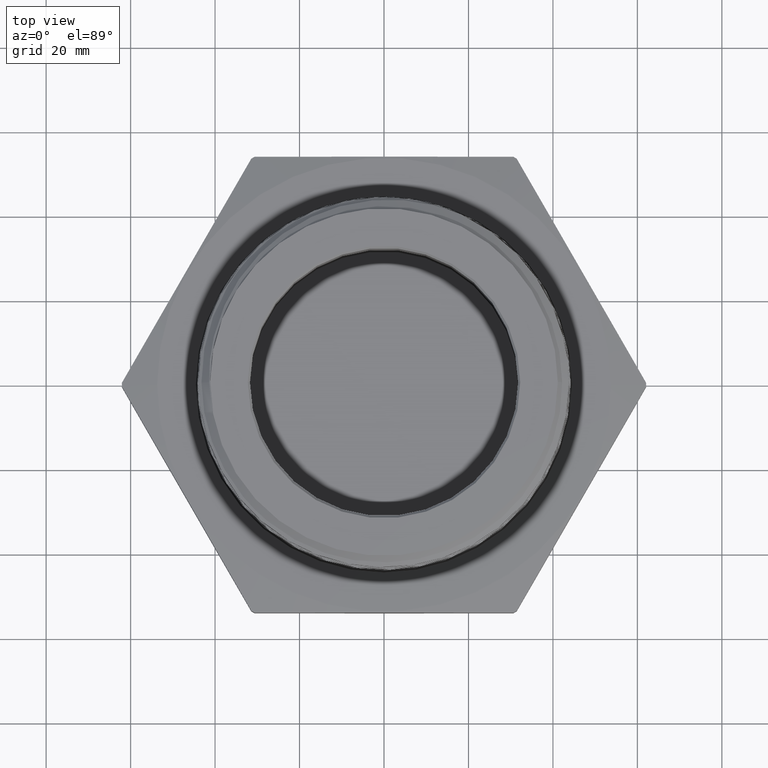
[diagram: clean part render]
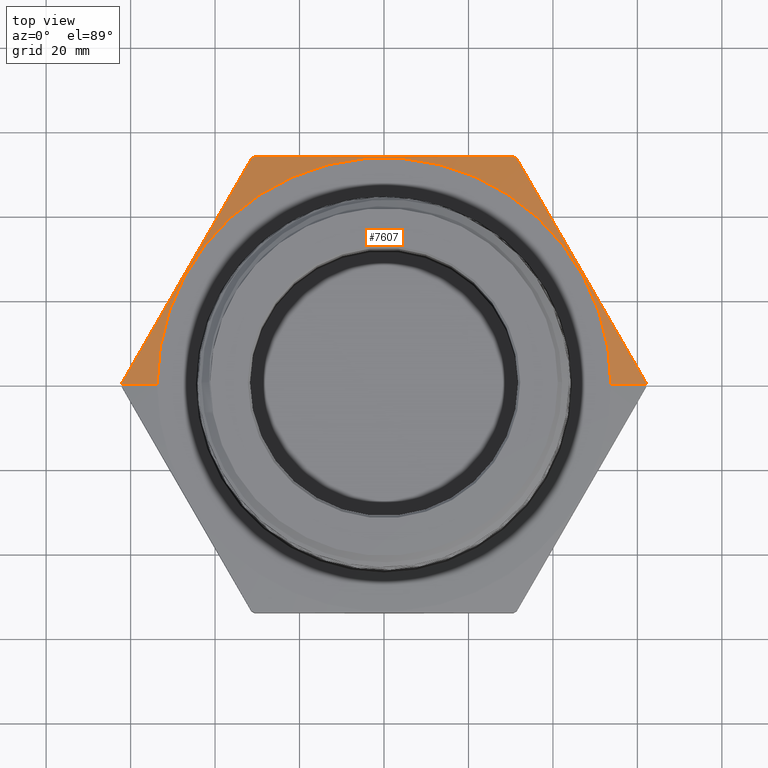
[diagram: same view with one face highlighted and labeled with its STEP entity id]
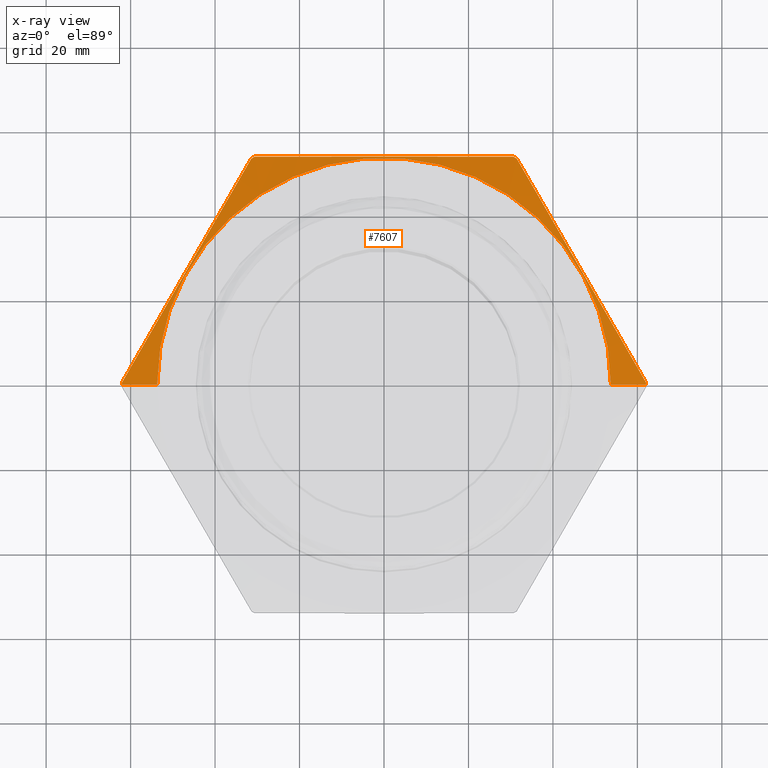
[diagram: x-ray of the same camera — body ghosted, the highlighted face saturated]
A machine part, top view. The second image highlights one B-rep face of the part: STEP entity #7607.
The next image is the same camera in x-ray: the body ghosted, the highlighted face saturated — about 0% of this face is hidden behind the body in this view.
In plain terms, the highlighted conical surface has half-angle 78 deg.
Its self-contained STEP definition (entity closure, byte-faithful):
#654 = B_SPLINE_CURVE_WITH_KNOTS ( 'NONE', 3,
 ( #4695, #4681, #4690, #4696, #4697, #4698, #4699, #4700, #4701 ),
 .UNSPECIFIED., .F., .F.,
 ( 4, 2, 1, 2, 4 ),
 ( 1.905392763494784500E-006, 0.01532756723704732800, 0.03065322908133116100, 0.04597889092561496800, 0.06130455276989878200 ),
 .UNSPECIFIED. ) ;
#655 = B_SPLINE_CURVE_WITH_KNOTS ( 'NONE', 3,
 ( #4772, #4755, #4766, #4773, #4774, #4775, #4776, #4777, #4778, #4779 ),
 .UNSPECIFIED., .F., .F.,
 ( 4, 2, 2, 2, 4 ),
 ( 0.05223950765027048100, 0.06762637841126337100, 0.08301324917225627600, 0.09840011993324916700, 0.1137869906942420600 ),
 .UNSPECIFIED. ) ;
#656 = B_SPLINE_CURVE_WITH_KNOTS ( 'NONE', 3,
 ( #4786, #4781, #4780, #4787, #4788, #4789, #4790, #4791, #4792 ),
 .UNSPECIFIED., .F., .F.,
 ( 4, 2, 1, 2, 4 ),
 ( 1.905392763277774600E-006, 0.01532756723704713000, 0.03065322908133098100, 0.04597889092561482900, 0.06130455276989868500 ),
 .UNSPECIFIED. ) ;
#1082 = DIRECTION ( 'NONE',  ( -1.000000000000000000, 0.0000000000000000000, 1.291653897713599600E-016 ) ) ;
#1083 = CARTESIAN_POINT ( 'NONE',  ( 6.274932739761918600E-017, 0.0000000000000000000, 0.4999999999999997200 ) ) ;
#1084 = DIRECTION ( 'NONE',  ( -1.254986547952384500E-016, -0.0000000000000000000, -1.000000000000000000 ) ) ;
#1156 = CARTESIAN_POINT ( 'NONE',  ( -1.236931469487450500, 2.107571849366902700, 0.4301244441314131000 ) ) ;
#1157 = CARTESIAN_POINT ( 'NONE',  ( -2.115000000000000200, 0.0000000000000000000, 0.5000000000000000000 ) ) ;
#1191 = CARTESIAN_POINT ( 'NONE',  ( -2.443738644055908300, 0.0000000000000000000, 0.4301244441314132100 ) ) ;
#1196 = CARTESIAN_POINT ( 'NONE',  ( -2.443676496596413300, 0.01742815063309760900, 0.4301244441314132100 ) ) ;
#1197 = CARTESIAN_POINT ( 'NONE',  ( 2.443738644055908300, 2.992716708395761100E-016, 0.4301244441314126500 ) ) ;
#1211 = CARTESIAN_POINT ( 'NONE',  ( 2.443676496596413300, 0.01742815063309597100, 0.4301244441314126500 ) ) ;
#1213 = CARTESIAN_POINT ( 'NONE',  ( 1.206745027108962600, 2.125000000000000000, 0.4301244441314128200 ) ) ;
#1215 = CARTESIAN_POINT ( 'NONE',  ( 2.115000000000000200, 2.590127980196652600E-016, 0.4999999999999994400 ) ) ;
#1216 = CARTESIAN_POINT ( 'NONE',  ( -1.206745027108962600, 2.125000000000000000, 0.4301244441314131000 ) ) ;
#1228 = CARTESIAN_POINT ( 'NONE',  ( 1.236931469487448500, 2.107571849366904400, 0.4301244441314128200 ) ) ;
#1362 = EDGE_CURVE ( 'NONE', #7767, #7757, #7397, .T. ) ;
#1367 = EDGE_CURVE ( 'NONE', #7756, #7767, #7404, .T. ) ;
#1369 = EDGE_CURVE ( 'NONE', #7753, #7780, #7413, .T. ) ;
#1370 = EDGE_CURVE ( 'NONE', #7757, #7753, #654, .T. ) ;
#1397 = EDGE_CURVE ( 'NONE', #7780, #7777, #655, .T. ) ;
#1398 = EDGE_CURVE ( 'NONE', #7777, #7792, #7448, .T. ) ;
#1399 = EDGE_CURVE ( 'NONE', #7792, #7775, #656, .T. ) ;
#1400 = EDGE_CURVE ( 'NONE', #7775, #7758, #7452, .T. ) ;
#1401 = EDGE_CURVE ( 'NONE', #7779, #7758, #7453, .T. ) ;
#1402 = EDGE_CURVE ( 'NONE', #7756, #7779, #7449, .T. ) ;
#1505 = AXIS2_PLACEMENT_3D ( 'NONE', #4673, #4674, #4675 ) ;
#1509 = AXIS2_PLACEMENT_3D ( 'NONE', #4692, #4693, #4694 ) ;
#1526 = AXIS2_PLACEMENT_3D ( 'NONE', #4783, #4784, #4785 ) ;
#1527 = AXIS2_PLACEMENT_3D ( 'NONE', #4794, #4795, #4796 ) ;
#1528 = AXIS2_PLACEMENT_3D ( 'NONE', #4799, #4800, #4801 ) ;
#1569 = AXIS2_PLACEMENT_3D ( 'NONE', #1083, #1084, #1082 ) ;
#4673 = CARTESIAN_POINT ( 'NONE',  ( 5.398003913304201600E-017, 0.0000000000000000000, 0.4301244441314129300 ) ) ;
#4674 = DIRECTION ( 'NONE',  ( -1.254986547952384500E-016, -0.0000000000000000000, -1.000000000000000000 ) ) ;
#4675 = DIRECTION ( 'NONE',  ( -1.000000000000000000, 0.0000000000000000000, 1.117896956906232600E-016 ) ) ;
#4681 = CARTESIAN_POINT ( 'NONE',  ( -2.343114411003999600, 0.1916067921942480000, 0.4512349939680404000 ) ) ;
#4682 = CARTESIAN_POINT ( 'NONE',  ( -2.115000000000000200, 0.0000000000000000000, 0.5000000000000000000 ) ) ;
#4686 = DIRECTION ( 'NONE',  ( -0.9781476007338071300, 0.0000000000000000000, -0.2079116908177526300 ) ) ;
#4690 = CARTESIAN_POINT ( 'NONE',  ( -2.242552325411586000, 0.3657854337553982400, 0.4683426434038141000 ) ) ;
#4692 = CARTESIAN_POINT ( 'NONE',  ( 5.398003913304201600E-017, 0.0000000000000000000, 0.4301244441314129300 ) ) ;
#4693 = DIRECTION ( 'NONE',  ( -1.254986547952384500E-016, -0.0000000000000000000, -1.000000000000000000 ) ) ;
#4694 = DIRECTION ( 'NONE',  ( -1.000000000000000000, 0.0000000000000000000, 1.117896956906232600E-016 ) ) ;
#4695 = CARTESIAN_POINT ( 'NONE',  ( -2.443676496596413300, 0.01742815063309760900, 0.4301244441314132100 ) ) ;
#4696 = CARTESIAN_POINT ( 'NONE',  ( -2.041428154226758700, 0.7141427168776989200, 0.4916964930184521400 ) ) ;
#4697 = CARTESIAN_POINT ( 'NONE',  ( -1.840303983041931000, 1.062500000000000200, 0.5040523757481477600 ) ) ;
#4698 = CARTESIAN_POINT ( 'NONE',  ( -1.639179811857104400, 1.410857283122300500, 0.4916964930184521400 ) ) ;
#4699 = CARTESIAN_POINT ( 'NONE',  ( -1.438055640672277500, 1.759214566244601500, 0.4683426434038141500 ) ) ;
#4700 = CARTESIAN_POINT ( 'NONE',  ( -1.337493555079864300, 1.933393207805751400, 0.4512349939680405700 ) ) ;
#4701 = CARTESIAN_POINT ( 'NONE',  ( -1.236931469487450500, 2.107571849366902700, 0.4301244441314131000 ) ) ;
#4755 = CARTESIAN_POINT ( 'NONE',  ( -1.005781015009231200, 2.125000000000000000, 0.4512181832270550900 ) ) ;
#4766 = CARTESIAN_POINT ( 'NONE',  ( -0.8040512479218525600, 2.125000000000000000, 0.4683819090570765000 ) ) ;
#4771 = DIRECTION ( 'NONE',  ( 0.9781476007338069100, 1.197885328332319900E-016, -0.2079116908177528500 ) ) ;
#4772 = CARTESIAN_POINT ( 'NONE',  ( -1.206745027108962600, 2.125000000000000000, 0.4301244441314131000 ) ) ;
#4773 = CARTESIAN_POINT ( 'NONE',  ( -0.4011965096077161300, 2.125000000000000000, 0.4917441063620853200 ) ) ;
#4774 = CARTESIAN_POINT ( 'NONE',  ( -0.1998930446505723100, 2.124999999999999100, 0.4978999444683490100 ) ) ;
#4775 = CARTESIAN_POINT ( 'NONE',  ( 0.2024366476496758900, 2.124999999999999600, 0.4978487625073062500 ) ) ;
#4776 = CARTESIAN_POINT ( 'NONE',  ( 0.4034629190911901400, 2.124999999999999600, 0.4916437089205580300 ) ) ;
#4777 = CARTESIAN_POINT ( 'NONE',  ( 0.8052698255614353400, 2.125000000000000000, 0.4682799360836170700 ) ) ;
#4778 = CARTESIAN_POINT ( 'NONE',  ( 1.006051997229160200, 2.124999999999999600, 0.4511897401830140000 ) ) ;
#4779 = CARTESIAN_POINT ( 'NONE',  ( 1.206745027108962600, 2.125000000000000000, 0.4301244441314128200 ) ) ;
#4780 = CARTESIAN_POINT ( 'NONE',  ( 1.438055640672276400, 1.759214566244603000, 0.4683426434038138200 ) ) ;
#4781 = CARTESIAN_POINT ( 'NONE',  ( 1.337493555079863200, 1.933393207805754100, 0.4512349939680398400 ) ) ;
#4782 = CARTESIAN_POINT ( 'NONE',  ( 2.115000000000000200, 2.590127980196652600E-016, 0.4999999999999994400 ) ) ;
#4783 = CARTESIAN_POINT ( 'NONE',  ( 5.398003913304201600E-017, 0.0000000000000000000, 0.4301244441314129300 ) ) ;
#4784 = DIRECTION ( 'NONE',  ( -1.254986547952384500E-016, -0.0000000000000000000, -1.000000000000000000 ) ) ;
#4785 = DIRECTION ( 'NONE',  ( -1.000000000000000000, 0.0000000000000000000, 1.117896956906232600E-016 ) ) ;
#4786 = CARTESIAN_POINT ( 'NONE',  ( 1.236931469487448500, 2.107571849366904400, 0.4301244441314128200 ) ) ;
#4787 = CARTESIAN_POINT ( 'NONE',  ( 1.639179811857103000, 1.410857283122301400, 0.4916964930184515900 ) ) ;
#4788 = CARTESIAN_POINT ( 'NONE',  ( 1.840303983041931400, 1.062500000000000200, 0.5040523757481474300 ) ) ;
#4789 = CARTESIAN_POINT ( 'NONE',  ( 2.041428154226758700, 0.7141427168776989200, 0.4916964930184516400 ) ) ;
#4790 = CARTESIAN_POINT ( 'NONE',  ( 2.242552325411586400, 0.3657854337553973500, 0.4683426434038136000 ) ) ;
#4791 = CARTESIAN_POINT ( 'NONE',  ( 2.343114411004000500, 0.1916067921942465600, 0.4512349939680399000 ) ) ;
#4792 = CARTESIAN_POINT ( 'NONE',  ( 2.443676496596413300, 0.01742815063309597100, 0.4301244441314126500 ) ) ;
#4794 = CARTESIAN_POINT ( 'NONE',  ( 5.398003913304201600E-017, 0.0000000000000000000, 0.4301244441314129300 ) ) ;
#4795 = DIRECTION ( 'NONE',  ( -1.254986547952384500E-016, -0.0000000000000000000, -1.000000000000000000 ) ) ;
#4796 = DIRECTION ( 'NONE',  ( -1.000000000000000000, 0.0000000000000000000, 1.117896956906232600E-016 ) ) ;
#4799 = CARTESIAN_POINT ( 'NONE',  ( 6.274932739761918600E-017, 0.0000000000000000000, 0.4999999999999997200 ) ) ;
#4800 = DIRECTION ( 'NONE',  ( -1.254986547952384500E-016, -0.0000000000000000000, -1.000000000000000000 ) ) ;
#4801 = DIRECTION ( 'NONE',  ( -1.000000000000000000, 0.0000000000000000000, 1.291653897713599600E-016 ) ) ;
#7397 = CIRCLE ( 'NONE', #1505, 2.443738644055908300 ) ;
#7404 = LINE ( 'NONE', #4682, #7412 ) ;
#7412 = VECTOR ( 'NONE', #4686, 39.37007874015748900 ) ;
#7413 = CIRCLE ( 'NONE', #1509, 2.443738644055908300 ) ;
#7448 = CIRCLE ( 'NONE', #1526, 2.443738644055908300 ) ;
#7449 = CIRCLE ( 'NONE', #1528, 2.115000000000000200 ) ;
#7452 = CIRCLE ( 'NONE', #1527, 2.443738644055908300 ) ;
#7453 = LINE ( 'NONE', #4782, #7454 ) ;
#7454 = VECTOR ( 'NONE', #4771, 39.37007874015748100 ) ;
#7535 = FACE_OUTER_BOUND ( 'NONE', #7914, .T. ) ;
#7542 = CONICAL_SURFACE ( 'NONE', #1569, 2.115000000000000200, 1.361356816555583800 ) ;
#7607 = ADVANCED_FACE ( 'NONE', ( #7535 ), #7542, .T. ) ;
#7753 = VERTEX_POINT ( 'NONE', #1156 ) ;
#7756 = VERTEX_POINT ( 'NONE', #1157 ) ;
#7757 = VERTEX_POINT ( 'NONE', #1196 ) ;
#7758 = VERTEX_POINT ( 'NONE', #1197 ) ;
#7767 = VERTEX_POINT ( 'NONE', #1191 ) ;
#7775 = VERTEX_POINT ( 'NONE', #1211 ) ;
#7777 = VERTEX_POINT ( 'NONE', #1213 ) ;
#7779 = VERTEX_POINT ( 'NONE', #1215 ) ;
#7780 = VERTEX_POINT ( 'NONE', #1216 ) ;
#7792 = VERTEX_POINT ( 'NONE', #1228 ) ;
#7800 = ORIENTED_EDGE ( 'NONE', *, *, #1362, .F. ) ;
#7801 = ORIENTED_EDGE ( 'NONE', *, *, #1367, .F. ) ;
#7825 = ORIENTED_EDGE ( 'NONE', *, *, #1402, .T. ) ;
#7826 = ORIENTED_EDGE ( 'NONE', *, *, #1401, .T. ) ;
#7827 = ORIENTED_EDGE ( 'NONE', *, *, #1400, .F. ) ;
#7828 = ORIENTED_EDGE ( 'NONE', *, *, #1399, .F. ) ;
#7829 = ORIENTED_EDGE ( 'NONE', *, *, #1398, .F. ) ;
#7830 = ORIENTED_EDGE ( 'NONE', *, *, #1397, .F. ) ;
#7831 = ORIENTED_EDGE ( 'NONE', *, *, #1369, .F. ) ;
#7832 = ORIENTED_EDGE ( 'NONE', *, *, #1370, .F. ) ;
#7914 = EDGE_LOOP ( 'NONE', ( #7825, #7826, #7827, #7828, #7829, #7830, #7831, #7832, #7800, #7801 ) ) ;